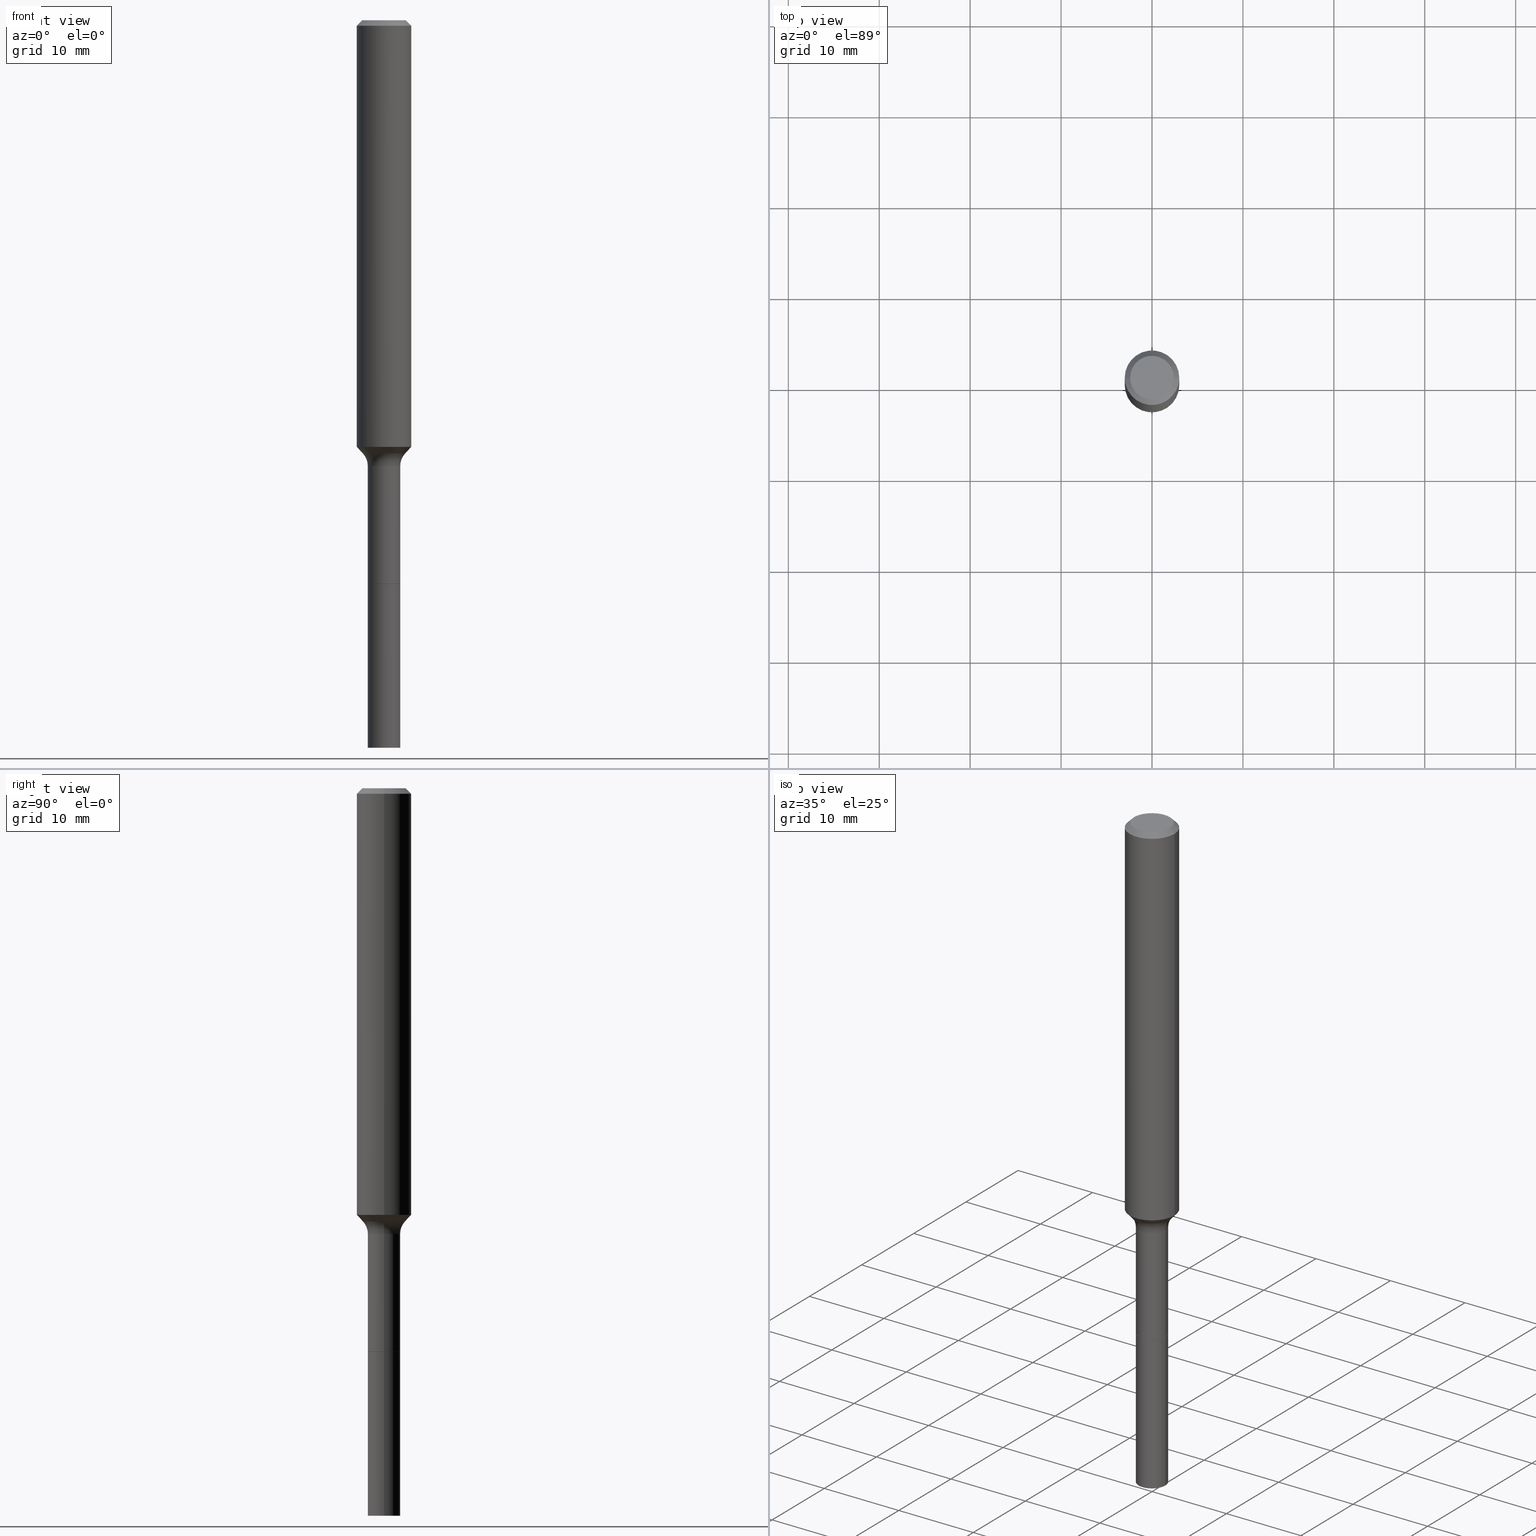
[diagram: canonical four-view strip — front | top / right | iso, engineering-drawing reading convention]
A machine part, canonical four-view strip (front | top / right | iso — engineering-drawing reading convention). The complete STEP part file that produces these views, byte-faithful:
ISO-10303-21;
HEADER;
FILE_DESCRIPTION (( 'STEP AP203' ),
    '1' );
FILE_NAME ('58869.STEP',
    '2025-04-01T15:26:04',
    ( '' ),
    ( '' ),
    'SwSTEP 2.0',
    'SolidWorks 2024',
    '' );
FILE_SCHEMA (( 'CONFIG_CONTROL_DESIGN' ));
ENDSEC;

DATA;
#1 = ORIENTED_EDGE ( 'NONE', *, *, #299, .F. ) ;
#2 = DIRECTION ( 'NONE',  ( 1.000000000000000000, -6.982962677686267499E-15, 4.875432709231658792E-29 ) ) ;
#3 = ORIENTED_EDGE ( 'NONE', *, *, #182, .F. ) ;
#4 = PRODUCT_DEFINITION ( 'UNKNOWN', '', #486, #371 ) ;
#5 = CARTESIAN_POINT ( 'NONE',  ( -0.07029999999999995974, 4.995115432393501446E-16, -3.458011368449196767E-30 ) ) ;
#6 = LENGTH_MEASURE_WITH_UNIT ( LENGTH_MEASURE( 0.02539999999999999897 ), #95 );
#7 = EDGE_CURVE ( 'NONE', #45, #402, #39, .T. ) ;
#8 = AXIS2_PLACEMENT_3D ( 'NONE', #436, #151, #211 ) ;
#9 = VECTOR ( 'NONE', #167, 39.37007874015748143 ) ;
#10 = ADVANCED_FACE ( 'NONE', ( #40 ), #481, .F. ) ;
#11 = ORIENTED_EDGE ( 'NONE', *, *, #452, .T. ) ;
#12 = DIRECTION ( 'NONE',  ( -2.438088387897960049E-29, 3.491481338843145188E-15, 1.000000000000000000 ) ) ;
#13 = CARTESIAN_POINT ( 'NONE',  ( -0.07030000000000000138, -9.259527946961124365E-15, -2.440600000000000325 ) ) ;
#14 = EDGE_CURVE ( 'NONE', #402, #45, #245, .T. ) ;
#15 = ORIENTED_EDGE ( 'NONE', *, *, #386, .F. ) ;
#16 = PLANE ( 'NONE',  #392 ) ;
#17 = ORIENTED_EDGE ( 'NONE', *, *, #55, .T. ) ;
#18 = CC_DESIGN_APPROVAL ( #196, ( #4 ) ) ;
#19 = PERSON_AND_ORGANIZATION ( #75, #469 ) ;
#20 = CIRCLE ( 'NONE', #234, 0.07030000000000000138 ) ;
#21 = CARTESIAN_POINT ( 'NONE',  ( 5.968411168375444927E-29, -8.521309355580580852E-15, -2.440600000000000325 ) ) ;
#22 = ORIENTED_EDGE ( 'NONE', *, *, #254, .F. ) ;
#23 = CYLINDRICAL_SURFACE ( 'NONE', #498, 0.07030000000000009852 ) ;
#24 = EDGE_CURVE ( 'NONE', #398, #500, #44, .T. ) ;
#25 = CIRCLE ( 'NONE', #143, 0.09179170387046625690 ) ;
#26 = EDGE_LOOP ( 'NONE', ( #221, #450 ) ) ;
#27 = AXIS2_PLACEMENT_3D ( 'NONE', #468, #108, #410 ) ;
#28 = DIRECTION ( 'NONE',  ( 1.000000000000000000, -6.982962677686266711E-15, 4.876176775795935793E-29 ) ) ;
#29 = ADVANCED_FACE ( 'NONE', ( #123 ), #288, .T. ) ;
#30 = VECTOR ( 'NONE', #389, 39.37007874015748143 ) ;
#31 = ADVANCED_FACE ( 'NONE', ( #334 ), #279, .T. ) ;
#32 = COORDINATED_UNIVERSAL_TIME_OFFSET ( 5, 0, .BEHIND. ) ;
#33 = VERTEX_POINT ( 'NONE', #236 ) ;
#34 = PRODUCT ( '58869', '58869', '', ( #454 ) ) ;
#35 = CC_DESIGN_APPROVAL ( #365, ( #486 ) ) ;
#36 = ORIENTED_EDGE ( 'NONE', *, *, #214, .T. ) ;
#37 = DIRECTION ( 'NONE',  ( -2.445468806185136597E-29, 3.491481338843145583E-15, 1.000000000000000000 ) ) ;
#38 = DATE_AND_TIME ( #287, #423 ) ;
#39 = CIRCLE ( 'NONE', #396, 0.1181000000000002187 ) ;
#40 = FACE_OUTER_BOUND ( 'NONE', #286, .T. ) ;
#41 = ORIENTED_EDGE ( 'NONE', *, *, #299, .T. ) ;
#42 = ORIENTED_EDGE ( 'NONE', *, *, #102, .T. ) ;
#43 = AXIS2_PLACEMENT_3D ( 'NONE', #124, #325, #407 ) ;
#44 = LINE ( 'NONE', #248, #9 ) ;
#45 = VERTEX_POINT ( 'NONE', #390 ) ;
#46 = CARTESIAN_POINT ( 'NONE',  ( 0.1181000000000001077, -8.246878922347488542E-16, 5.758764772215005345E-30 ) ) ;
#47 = ADVANCED_BREP_SHAPE_REPRESENTATION ( '58869', ( #303, #479, #173 ), #379 ) ;
#48 = PRODUCT_DEFINITION_SHAPE ( 'NONE', 'NONE',  #4 ) ;
#49 = EDGE_CURVE ( 'NONE', #500, #444, #404, .T. ) ;
#50 = DIRECTION ( 'NONE',  ( -1.000000000000000000, 6.982962677686266711E-15, 0.000000000000000000 ) ) ;
#51 = DIRECTION ( 'NONE',  ( 0.6819983600625029174, -2.208861293262521557E-15, 0.7313537016191662410 ) ) ;
#52 = CIRCLE ( 'NONE', #275, 0.06980000000000000093 ) ;
#53 = VERTEX_POINT ( 'NONE', #13 ) ;
#54 = LINE ( 'NONE', #217, #329 ) ;
#55 = EDGE_CURVE ( 'NONE', #444, #361, #175, .T. ) ;
#56 = DIRECTION ( 'NONE',  ( -2.445468806185136597E-29, 3.491481338843145583E-15, 1.000000000000000000 ) ) ;
#57 = ORIENTED_EDGE ( 'NONE', *, *, #24, .F. ) ;
#58 = DIRECTION ( 'NONE',  ( 1.000000000000000000, -6.982962677686279332E-15, 0.000000000000000000 ) ) ;
#59 = DIRECTION ( 'NONE',  ( -2.445468806185136597E-29, 3.491481338843145583E-15, 1.000000000000000000 ) ) ;
#60 = ORIENTED_EDGE ( 'NONE', *, *, #330, .F. ) ;
#61 = VERTEX_POINT ( 'NONE', #405 ) ;
#62 = ORIENTED_EDGE ( 'NONE', *, *, #336, .T. ) ;
#63 = AXIS2_PLACEMENT_3D ( 'NONE', #265, #430, #147 ) ;
#64 = APPLICATION_CONTEXT ( 'configuration controlled 3d designs of mechanical parts and assemblies' ) ;
#65 = CC_DESIGN_DATE_AND_TIME_ASSIGNMENT ( #149, #159, ( #121 ) ) ;
#66 = FACE_OUTER_BOUND ( 'NONE', #80, .T. ) ;
#67 = DIRECTION ( 'NONE',  ( 1.000000000000000000, -6.982962677686270655E-15, 0.000000000000000000 ) ) ;
#68 = APPLICATION_PROTOCOL_DEFINITION ( 'international standard', 'config_control_design', 1994, #64 ) ;
#69 = EDGE_CURVE ( 'NONE', #361, #247, #158, .T. ) ;
#70 = DIRECTION ( 'NONE',  ( -2.445468806185136597E-29, 3.491481338843145583E-15, 1.000000000000000000 ) ) ;
#71 = CARTESIAN_POINT ( 'NONE',  ( 0.07030000000000000138, -9.012211631821926589E-15, -2.440600000000000325 ) ) ;
#72 = PRODUCT_RELATED_PRODUCT_CATEGORY ( 'detail', '', ( #34 ) ) ;
#73 = EDGE_LOOP ( 'NONE', ( #215, #425, #338, #439 ) ) ;
#74 = AXIS2_PLACEMENT_3D ( 'NONE', #157, #169, #333 ) ;
#75 = PERSON ( 'UNSPECIFIED', 'UNSPECIFIED', 'UNSPECIFIED', ('UNSPECIFIED'), ('UNSPECIFIED'), ('UNSPECIFIED') ) ;
#76 = DIRECTION ( 'NONE',  ( 2.438088387897960049E-29, -3.491481338843145188E-15, -1.000000000000000000 ) ) ;
#77 = DIRECTION ( 'NONE',  ( 2.445468806185136597E-29, -3.491481338843145583E-15, -1.000000000000000000 ) ) ;
#78 = PERSON_AND_ORGANIZATION ( #75, #469 ) ;
#79 = FACE_OUTER_BOUND ( 'NONE', #103, .T. ) ;
#80 = EDGE_LOOP ( 'NONE', ( #142, #413, #497, #510 ) ) ;
#81 = CARTESIAN_POINT ( 'NONE',  ( -0.1180999999999999966, -2.426166063791637910E-15, -0.02362000000000014435 ) ) ;
#82 = AXIS2_PLACEMENT_3D ( 'NONE', #502, #315, #98 ) ;
#83 = COORDINATED_UNIVERSAL_TIME_OFFSET ( 5, 0, .BEHIND. ) ;
#84 = CYLINDRICAL_SURFACE ( 'NONE', #462, 0.1181000000000001077 ) ;
#85 = ORIENTED_EDGE ( 'NONE', *, *, #163, .F. ) ;
#86 = EDGE_CURVE ( 'NONE', #500, #247, #130, .T. ) ;
#87 = DIRECTION ( 'NONE',  ( -2.445468806185136597E-29, 3.491481338843145583E-15, 1.000000000000000000 ) ) ;
#88 = ORIENTED_EDGE ( 'NONE', *, *, #7, .T. ) ;
#89 = SHAPE_DEFINITION_REPRESENTATION ( #48, #47 ) ;
#90 = CARTESIAN_POINT ( 'NONE',  ( 4.516360111820457687E-29, -6.448165280225159912E-15, -1.846827937611624559 ) ) ;
#91 = EDGE_LOOP ( 'NONE', ( #201, #88, #252, #487 ) ) ;
#92 = CARTESIAN_POINT ( 'NONE',  ( 5.968411168375444927E-29, -8.521309355580580852E-15, -2.440600000000000325 ) ) ;
#93 = AXIS2_PLACEMENT_3D ( 'NONE', #380, #184, #387 ) ;
#94 = ADVANCED_FACE ( 'NONE', ( #411 ), #352, .T. ) ;
#95 =( LENGTH_UNIT ( ) NAMED_UNIT ( * ) SI_UNIT ( $, .METRE. ) );
#96 = CIRCLE ( 'NONE', #93, 0.07029999999999993199 ) ;
#97 = DIRECTION ( 'NONE',  ( 0.7071067811865460184, -7.319954787623251312E-15, -0.7071067811865490160 ) ) ;
#98 = DIRECTION ( 'NONE',  ( 1.000000000000000000, -6.982962677686279332E-15, 0.000000000000000000 ) ) ;
#99 = ORIENTED_EDGE ( 'NONE', *, *, #409, .T. ) ;
#100 = CARTESIAN_POINT ( 'NONE',  ( 0.1180999999999999966, -8.926936027602933910E-16, -0.02362000000000014435 ) ) ;
#101 = AXIS2_PLACEMENT_3D ( 'NONE', #482, #171, #116 ) ;
#102 = EDGE_CURVE ( 'NONE', #302, #477, #412, .T. ) ;
#103 = EDGE_LOOP ( 'NONE', ( #244, #513, #476, #1 ) ) ;
#104 = DIRECTION ( 'NONE',  ( -2.445468806185136597E-29, 3.491481338843145583E-15, 1.000000000000000000 ) ) ;
#105 = CARTESIAN_POINT ( 'NONE',  ( -0.09179170387046634016, -5.894448343767324042E-15, -1.875040131195000015 ) ) ;
#106 = CLOSED_SHELL ( 'NONE', ( #119, #238, #140, #190, #320, #29, #491, #360, #94, #293, #420, #437, #229, #473 ) ) ;
#107 = ORIENTED_EDGE ( 'NONE', *, *, #220, .T. ) ;
#108 = DIRECTION ( 'NONE',  ( -2.445468806185136597E-29, 3.491481338843145583E-15, 1.000000000000000000 ) ) ;
#109 = CARTESIAN_POINT ( 'NONE',  ( 0.07029999999999993199, -7.228064667673078944E-15, -1.929599999999999982 ) ) ;
#110 = VECTOR ( 'NONE', #471, 39.37007874015748143 ) ;
#111 = COORDINATED_UNIVERSAL_TIME_OFFSET ( 5, 0, .BEHIND. ) ;
#112 = CARTESIAN_POINT ( 'NONE',  ( 5.968411168375444927E-29, -8.521309355580580852E-15, -2.440600000000000325 ) ) ;
#113 = FACE_OUTER_BOUND ( 'NONE', #179, .T. ) ;
#114 = CARTESIAN_POINT ( 'NONE',  ( -0.1181000000000001077, 8.391509709326790846E-16, -5.809262341591049389E-30 ) ) ;
#115 = CALENDAR_DATE ( 2025, 1, 4 ) ;
#116 = DIRECTION ( 'NONE',  ( 1.000000000000000000, -6.982962677686265922E-15, 4.883557194083112901E-29 ) ) ;
#117 = DIRECTION ( 'NONE',  ( -2.445468806185136597E-29, 3.491481338843145583E-15, 1.000000000000000000 ) ) ;
#118 = CARTESIAN_POINT ( 'NONE',  ( 5.968411168375444927E-29, -8.521309355580580852E-15, -2.440600000000000325 ) ) ;
#119 = ADVANCED_FACE ( 'NONE', ( #79 ), #458, .T. ) ;
#120 = DATE_AND_TIME ( #362, #518 ) ;
#121 = SECURITY_CLASSIFICATION ( '', '', #331 ) ;
#122 = AXIS2_PLACEMENT_3D ( 'NONE', #375, #56, #281 ) ;
#123 = FACE_OUTER_BOUND ( 'NONE', #332, .T. ) ;
#124 = CARTESIAN_POINT ( 'NONE',  ( 0.000000000000000000, 0.000000000000000000, 0.000000000000000000 ) ) ;
#125 = EDGE_CURVE ( 'NONE', #477, #297, #319, .T. ) ;
#126 = EDGE_LOOP ( 'NONE', ( #3, #42, #177, #22 ) ) ;
#127 = CYLINDRICAL_SURFACE ( 'NONE', #43, 0.07029999999999995974 ) ;
#128 = AXIS2_PLACEMENT_3D ( 'NONE', #253, #250, #451 ) ;
#129 = DIRECTION ( 'NONE',  ( -1.000000000000000000, 6.982962677686265922E-15, -4.876176775795935793E-29 ) ) ;
#130 = LINE ( 'NONE', #5, #304 ) ;
#131 = EDGE_LOOP ( 'NONE', ( #495, #156, #17, #60 ) ) ;
#132 = DIRECTION ( 'NONE',  ( 0.000000000000000000, 0.000000000000000000, 1.000000000000000000 ) ) ;
#133 = CARTESIAN_POINT ( 'NONE',  ( 5.776197320209328408E-31, -8.246878922347560526E-17, -0.02362000000000014435 ) ) ;
#134 = CIRCLE ( 'NONE', #464, 0.08000000000000007105 ) ;
#135 = APPROVAL ( #326, 'UNSPECIFIED' ) ;
#136 = DIRECTION ( 'NONE',  ( 1.000000000000000000, -6.982962677686266711E-15, 4.876176775795935793E-29 ) ) ;
#137 = DIRECTION ( 'NONE',  ( 1.000000000000000000, -6.982962677686265922E-15, 4.883557194083112901E-29 ) ) ;
#138 = ORIENTED_EDGE ( 'NONE', *, *, #176, .F. ) ;
#139 = DIRECTION ( 'NONE',  ( -2.445468806185136597E-29, 3.491481338843145583E-15, 1.000000000000000000 ) ) ;
#140 = ADVANCED_FACE ( 'NONE', ( #283 ), #84, .T. ) ;
#141 = APPLICATION_CONTEXT ( 'configuration controlled 3d designs of mechanical parts and assemblies' ) ;
#142 = ORIENTED_EDGE ( 'NONE', *, *, #443, .F. ) ;
#143 = AXIS2_PLACEMENT_3D ( 'NONE', #496, #139, #67 ) ;
#144 = CARTESIAN_POINT ( 'NONE',  ( -0.1502999999999999337, -5.669216659584303494E-15, -1.929599999999999982 ) ) ;
#145 = CIRCLE ( 'NONE', #27, 0.1180999999999999966 ) ;
#146 = DIRECTION ( 'NONE',  ( 1.000000000000000000, -6.982962677686266711E-15, 0.000000000000000000 ) ) ;
#147 = DIRECTION ( 'NONE',  ( -1.000000000000000000, 6.982962677686265922E-15, -4.876176775795935793E-29 ) ) ;
#148 = EDGE_CURVE ( 'NONE', #418, #463, #172, .T. ) ;
#149 = DATE_AND_TIME ( #433, #408 ) ;
#150 = DIRECTION ( 'NONE',  ( 1.000000000000000000, -6.982962677686257244E-15, 0.000000000000000000 ) ) ;
#151 = DIRECTION ( 'NONE',  ( -2.445468806185136597E-29, 3.491481338843145583E-15, 1.000000000000000000 ) ) ;
#152 = AXIS2_PLACEMENT_3D ( 'NONE', #341, #227, #305 ) ;
#153 = DATE_AND_TIME ( #422, #351 ) ;
#154 = AXIS2_PLACEMENT_3D ( 'NONE', #344, #186, #183 ) ;
#155 = CC_DESIGN_DATE_AND_TIME_ASSIGNMENT ( #38, #388, ( #4 ) ) ;
#156 = ORIENTED_EDGE ( 'NONE', *, *, #49, .T. ) ;
#157 = CARTESIAN_POINT ( 'NONE',  ( 7.702248551960706711E-29, -1.099676962482037231E-14, -3.149600000000000399 ) ) ;
#158 = CIRCLE ( 'NONE', #294, 0.07029999999999993199 ) ;
#159 = DATE_TIME_ROLE ( 'classification_date' ) ;
#160 = EDGE_CURVE ( 'NONE', #328, #247, #240, .T. ) ;
#161 = ORIENTED_EDGE ( 'NONE', *, *, #508, .T. ) ;
#162 = EDGE_LOOP ( 'NONE', ( #268, #395, #467, #15 ) ) ;
#163 = EDGE_CURVE ( 'NONE', #421, #463, #459, .T. ) ;
#164 = PERSON_AND_ORGANIZATION_ROLE ( 'creator' ) ;
#165 = ORIENTED_EDGE ( 'NONE', *, *, #125, .F. ) ;
#166 = CIRCLE ( 'NONE', #453, 0.09447999999999998066 ) ;
#167 = DIRECTION ( 'NONE',  ( -0.7071067811866199593, 7.493145998870616062E-15, 0.7071067811864750752 ) ) ;
#168 = ORIENTED_EDGE ( 'NONE', *, *, #416, .T. ) ;
#169 = DIRECTION ( 'NONE',  ( -2.445468806185136597E-29, 3.491481338843145583E-15, 1.000000000000000000 ) ) ;
#170 = DIRECTION ( 'NONE',  ( 1.000000000000000000, -6.982962677686268288E-15, 4.876176775795935793E-29 ) ) ;
#171 = DIRECTION ( 'NONE',  ( -2.445468806185136597E-29, 3.491481338843145583E-15, 1.000000000000000000 ) ) ;
#172 = CIRCLE ( 'NONE', #213, 0.1180999999999999966 ) ;
#173 = AXIS2_PLACEMENT_3D ( 'NONE', #340, #132, #298 ) ;
#174 = AXIS2_PLACEMENT_3D ( 'NONE', #118, #76, #284 ) ;
#175 = LINE ( 'NONE', #368, #406 ) ;
#176 = EDGE_CURVE ( 'NONE', #358, #328, #25, .T. ) ;
#177 = ORIENTED_EDGE ( 'NONE', *, *, #125, .T. ) ;
#178 = CARTESIAN_POINT ( 'NONE',  ( 0.000000000000000000, 0.000000000000000000, 0.000000000000000000 ) ) ;
#179 = EDGE_LOOP ( 'NONE', ( #85, #447, #36, #223 ) ) ;
#180 = CARTESIAN_POINT ( 'NONE',  ( 7.702248551960706711E-29, -1.099676962482037231E-14, -3.149600000000000399 ) ) ;
#181 = EDGE_LOOP ( 'NONE', ( #295, #461 ) ) ;
#182 = EDGE_CURVE ( 'NONE', #302, #53, #381, .T. ) ;
#183 = DIRECTION ( 'NONE',  ( 1.000000000000000000, -6.982962677686270655E-15, 0.000000000000000000 ) ) ;
#184 = DIRECTION ( 'NONE',  ( -2.445468806185136597E-29, 3.491481338843145583E-15, 1.000000000000000000 ) ) ;
#185 = EDGE_LOOP ( 'NONE', ( #57, #99, #41, #291 ) ) ;
#186 = DIRECTION ( 'NONE',  ( -2.445468806185136597E-29, 3.491481338843145583E-15, 1.000000000000000000 ) ) ;
#187 = CARTESIAN_POINT ( 'NONE',  ( 4.718776608414840041E-29, -6.737162391431733996E-15, -1.929599999999999982 ) ) ;
#188 = ORIENTED_EDGE ( 'NONE', *, *, #182, .T. ) ;
#189 = FACE_OUTER_BOUND ( 'NONE', #266, .T. ) ;
#190 = ADVANCED_FACE ( 'NONE', ( #189 ), #428, .T. ) ;
#191 = CIRCLE ( 'NONE', #8, 0.06980000000000000093 ) ;
#192 = ORIENTED_EDGE ( 'NONE', *, *, #508, .F. ) ;
#193 = AXIS2_PLACEMENT_3D ( 'NONE', #180, #87, #434 ) ;
#194 = CARTESIAN_POINT ( 'NONE',  ( 5.968411168375444927E-29, -8.521309355580580852E-15, -2.440600000000000325 ) ) ;
#195 = APPROVAL_DATE_TIME ( #153, #196 ) ;
#196 = APPROVAL ( #327, 'UNSPECIFIED' ) ;
#197 = CARTESIAN_POINT ( 'NONE',  ( 5.967188433972353247E-29, -8.519563614911160138E-15, -2.440100000000000158 ) ) ;
#198 = AXIS2_PLACEMENT_3D ( 'NONE', #187, #348, #137 ) ;
#199 = TOROIDAL_SURFACE ( 'NONE', #198, 0.1502999999999999337, 0.08000000000000007105 ) ;
#200 = APPROVAL_STATUS ( 'not_yet_approved' ) ;
#201 = ORIENTED_EDGE ( 'NONE', *, *, #313, .F. ) ;
#202 = DIRECTION ( 'NONE',  ( 1.000000000000000000, -6.982962677686265922E-15, 0.000000000000000000 ) ) ;
#203 = APPROVAL_ROLE ( '' ) ;
#204 = ORIENTED_EDGE ( 'NONE', *, *, #69, .F. ) ;
#205 = CC_DESIGN_PERSON_AND_ORGANIZATION_ASSIGNMENT ( #19, #345, ( #34 ) ) ;
#206 = ORIENTED_EDGE ( 'NONE', *, *, #218, .T. ) ;
#207 = DIRECTION ( 'NONE',  ( 1.000000000000000000, -6.982962677686267499E-15, 0.000000000000000000 ) ) ;
#208 = ADVANCED_FACE ( 'NONE', ( #263 ), #23, .T. ) ;
#209 = CONICAL_SURFACE ( 'NONE', #152, 0.1180999999999999966, 0.7853981633974461696 ) ;
#210 = ORIENTED_EDGE ( 'NONE', *, *, #290, .T. ) ;
#211 = DIRECTION ( 'NONE',  ( 1.000000000000000000, -6.982962677686257244E-15, 0.000000000000000000 ) ) ;
#212 = FACE_OUTER_BOUND ( 'NONE', #185, .T. ) ;
#213 = AXIS2_PLACEMENT_3D ( 'NONE', #133, #301, #146 ) ;
#214 = EDGE_CURVE ( 'NONE', #33, #418, #346, .T. ) ;
#215 = ORIENTED_EDGE ( 'NONE', *, *, #220, .F. ) ;
#216 = APPLICATION_PROTOCOL_DEFINITION ( 'international standard', 'config_control_design', 1994, #141 ) ;
#217 = CARTESIAN_POINT ( 'NONE',  ( -0.09179170387046625690, -5.894448343767325620E-15, -1.875040131195000015 ) ) ;
#218 = EDGE_CURVE ( 'NONE', #297, #53, #20, .T. ) ;
#219 = DIRECTION ( 'NONE',  ( -0.7071067811865460184, 2.468850131082241283E-15, -0.7071067811865490160 ) ) ;
#220 = EDGE_CURVE ( 'NONE', #421, #33, #342, .T. ) ;
#221 = ORIENTED_EDGE ( 'NONE', *, *, #504, .F. ) ;
#222 = FACE_OUTER_BOUND ( 'NONE', #91, .T. ) ;
#223 = ORIENTED_EDGE ( 'NONE', *, *, #148, .T. ) ;
#224 = DIRECTION ( 'NONE',  ( -1.000000000000000000, 7.105427357601005014E-15, 0.000000000000000000 ) ) ;
#225 = CLOSED_SHELL ( 'NONE', ( #208, #347, #31, #10 ) ) ;
#226 = ORIENTED_EDGE ( 'NONE', *, *, #443, .T. ) ;
#227 = DIRECTION ( 'NONE',  ( 2.445468806185136597E-29, -3.491481338843145583E-15, -1.000000000000000000 ) ) ;
#228 = DIRECTION ( 'NONE',  ( -2.445468806185136597E-29, 3.491481338843145583E-15, 1.000000000000000000 ) ) ;
#229 = ADVANCED_FACE ( 'NONE', ( #350 ), #16, .F. ) ;
#230 = FACE_OUTER_BOUND ( 'NONE', #349, .T. ) ;
#231 =( NAMED_UNIT ( * ) PLANE_ANGLE_UNIT ( ) SI_UNIT ( $, .RADIAN. ) );
#232 = AXIS2_PLACEMENT_3D ( 'NONE', #194, #117, #150 ) ;
#233 = LINE ( 'NONE', #114, #110 ) ;
#234 = AXIS2_PLACEMENT_3D ( 'NONE', #414, #104, #58 ) ;
#235 = CARTESIAN_POINT ( 'NONE',  ( 0.07030000000000009852, -9.012211631821926589E-15, -2.440600000000000325 ) ) ;
#236 = CARTESIAN_POINT ( 'NONE',  ( -0.09447999999999998066, 7.009847083995354710E-16, -3.085620075132147757E-17 ) ) ;
#237 = CARTESIAN_POINT ( 'NONE',  ( 5.968411168375444927E-29, -8.521309355580580852E-15, -2.440600000000000325 ) ) ;
#238 = ADVANCED_FACE ( 'NONE', ( #465 ), #209, .T. ) ;
#239 = APPROVAL_ROLE ( '' ) ;
#240 = CIRCLE ( 'NONE', #309, 0.08000000000000007105 ) ;
#241 = DIRECTION ( 'NONE',  ( 1.000000000000000000, -6.982962677686267499E-15, 0.000000000000000000 ) ) ;
#242 = FACE_OUTER_BOUND ( 'NONE', #376, .T. ) ;
#243 = CARTESIAN_POINT ( 'NONE',  ( 0.000000000000000000, 0.000000000000000000, 0.000000000000000000 ) ) ;
#244 = ORIENTED_EDGE ( 'NONE', *, *, #504, .T. ) ;
#245 = CIRCLE ( 'NONE', #316, 0.1181000000000002187 ) ;
#246 = PERSON_AND_ORGANIZATION ( #75, #469 ) ;
#247 = VERTEX_POINT ( 'NONE', #383 ) ;
#248 = CARTESIAN_POINT ( 'NONE',  ( -0.06980000000000000093, -8.025350526020031902E-15, -2.440600000000000325 ) ) ;
#249 = CONICAL_SURFACE ( 'NONE', #322, 0.06980000000000000093, 0.7853981633975507526 ) ;
#250 = DIRECTION ( 'NONE',  ( -2.445468806185136597E-29, 3.491481338843145583E-15, 1.000000000000000000 ) ) ;
#251 = CC_DESIGN_PERSON_AND_ORGANIZATION_ASSIGNMENT ( #246, #164, ( #4 ) ) ;
#252 = ORIENTED_EDGE ( 'NONE', *, *, #386, .T. ) ;
#253 = CARTESIAN_POINT ( 'NONE',  ( 4.585352151182658588E-29, -6.546667627649345936E-15, -1.875040131195000015 ) ) ;
#254 = EDGE_CURVE ( 'NONE', #53, #297, #312, .T. ) ;
#255 = ORIENTED_EDGE ( 'NONE', *, *, #69, .T. ) ;
#256 = FACE_OUTER_BOUND ( 'NONE', #131, .T. ) ;
#257 = DIMENSIONAL_EXPONENTS ( 1.000000000000000000, 0.000000000000000000, 0.000000000000000000, 0.000000000000000000, 0.000000000000000000, 0.000000000000000000, 0.000000000000000000 ) ;
#258 =( NAMED_UNIT ( * ) SI_UNIT ( $, .STERADIAN. ) SOLID_ANGLE_UNIT ( ) );
#259 = CC_DESIGN_SECURITY_CLASSIFICATION ( #121, ( #486 ) ) ;
#260 = DIRECTION ( 'NONE',  ( -2.445468806185136877E-29, 3.491481338843145188E-15, 1.000000000000000000 ) ) ;
#261 = CARTESIAN_POINT ( 'NONE',  ( -0.07030000000000009852, -8.021797812341230215E-15, -2.440600000000000325 ) ) ;
#262 = ORIENTED_EDGE ( 'NONE', *, *, #14, .F. ) ;
#263 = FACE_OUTER_BOUND ( 'NONE', #441, .T. ) ;
#264 = ORIENTED_EDGE ( 'NONE', *, *, #254, .T. ) ;
#265 = CARTESIAN_POINT ( 'NONE',  ( 7.702248551960706711E-29, -1.099676962482037231E-14, -3.149600000000000399 ) ) ;
#266 = EDGE_LOOP ( 'NONE', ( #373, #210, #262, #192 ) ) ;
#267 = APPROVAL_PERSON_ORGANIZATION ( #78, #365, #203 ) ;
#268 = ORIENTED_EDGE ( 'NONE', *, *, #14, .T. ) ;
#269 = CC_DESIGN_PERSON_AND_ORGANIZATION_ASSIGNMENT ( #323, #442, ( #121 ) ) ;
#270 = CARTESIAN_POINT ( 'NONE',  ( 7.545787641473140628E-46, -1.077338491108201769E-31, -3.085620075131671975E-17 ) ) ;
#271 = CARTESIAN_POINT ( 'NONE',  ( 5.967188433972353247E-29, -8.519563614911160138E-15, -2.440100000000000158 ) ) ;
#272 = ORIENTED_EDGE ( 'NONE', *, *, #290, .F. ) ;
#273 = EDGE_CURVE ( 'NONE', #463, #418, #145, .T. ) ;
#274 = DIRECTION ( 'NONE',  ( 0.7071067811866199593, -2.468850131083015945E-15, 0.7071067811864750752 ) ) ;
#275 = AXIS2_PLACEMENT_3D ( 'NONE', #237, #289, #445 ) ;
#276 = PERSON_AND_ORGANIZATION_ROLE ( 'design_supplier' ) ;
#277 = DIRECTION ( 'NONE',  ( -2.445468806185136597E-29, 3.491481338843145583E-15, 1.000000000000000000 ) ) ;
#278 = CARTESIAN_POINT ( 'NONE',  ( 5.776197320209328408E-31, -8.246878922347560526E-17, -0.02362000000000014435 ) ) ;
#279 = CYLINDRICAL_SURFACE ( 'NONE', #466, 0.07030000000000009852 ) ;
#280 = DIRECTION ( 'NONE',  ( 1.000000000000000000, -6.982962677686257244E-15, 0.000000000000000000 ) ) ;
#281 = DIRECTION ( 'NONE',  ( 1.000000000000000000, -6.982962677686270655E-15, 0.000000000000000000 ) ) ;
#282 = APPROVAL_ROLE ( '' ) ;
#283 = FACE_OUTER_BOUND ( 'NONE', #162, .T. ) ;
#284 = DIRECTION ( 'NONE',  ( -1.000000000000000000, 6.982962677686265922E-15, -4.876176775795935793E-29 ) ) ;
#285 = CIRCLE ( 'NONE', #128, 0.09179170387046625690 ) ;
#286 = EDGE_LOOP ( 'NONE', ( #206, #264 ) ) ;
#287 = CALENDAR_DATE ( 2025, 1, 4 ) ;
#288 = CYLINDRICAL_SURFACE ( 'NONE', #472, 0.07029999999999995974 ) ;
#289 = DIRECTION ( 'NONE',  ( -2.445468806185136597E-29, 3.491481338843145583E-15, 1.000000000000000000 ) ) ;
#290 = EDGE_CURVE ( 'NONE', #328, #45, #54, .T. ) ;
#291 = ORIENTED_EDGE ( 'NONE', *, *, #49, .F. ) ;
#292 = VECTOR ( 'NONE', #339, 39.37007874015748143 ) ;
#293 = ADVANCED_FACE ( 'NONE', ( #222 ), #374, .T. ) ;
#294 = AXIS2_PLACEMENT_3D ( 'NONE', #415, #59, #483 ) ;
#295 = ORIENTED_EDGE ( 'NONE', *, *, #480, .F. ) ;
#296 =( CONVERSION_BASED_UNIT ( 'INCH', #6 ) LENGTH_UNIT ( ) NAMED_UNIT ( #257 ) );
#297 = VERTEX_POINT ( 'NONE', #71 ) ;
#298 = DIRECTION ( 'NONE',  ( 1.000000000000000000, 0.000000000000000000, 0.000000000000000000 ) ) ;
#299 = EDGE_CURVE ( 'NONE', #61, #444, #429, .T. ) ;
#300 = VECTOR ( 'NONE', #274, 39.37007874015748143 ) ;
#301 = DIRECTION ( 'NONE',  ( -2.445468806185136597E-29, 3.491481338843145583E-15, 1.000000000000000000 ) ) ;
#302 = VERTEX_POINT ( 'NONE', #505 ) ;
#303 = MANIFOLD_SOLID_BREP ( 'Body-Move/Copy2[1]', #225 ) ;
#304 = VECTOR ( 'NONE', #260, 39.37007874015748143 ) ;
#305 = DIRECTION ( 'NONE',  ( -1.000000000000000000, 6.982962677686266711E-15, 0.000000000000000000 ) ) ;
#306 = DIRECTION ( 'NONE',  ( -2.445468806185136877E-29, 3.491481338843145188E-15, 1.000000000000000000 ) ) ;
#307 = CC_DESIGN_PERSON_AND_ORGANIZATION_ASSIGNMENT ( #357, #512, ( #486 ) ) ;
#308 = DIRECTION ( 'NONE',  ( -2.445468806185136597E-29, 3.491481338843145583E-15, 1.000000000000000000 ) ) ;
#309 = AXIS2_PLACEMENT_3D ( 'NONE', #144, #456, #224 ) ;
#310 = ORIENTED_EDGE ( 'NONE', *, *, #160, .F. ) ;
#311 = DIRECTION ( 'NONE',  ( 1.000000000000000000, -6.982962677686269866E-15, 0.000000000000000000 ) ) ;
#312 = CIRCLE ( 'NONE', #82, 0.07030000000000000138 ) ;
#313 = EDGE_CURVE ( 'NONE', #45, #418, #233, .T. ) ;
#314 = EDGE_LOOP ( 'NONE', ( #272, #226, #161, #324 ) ) ;
#315 = DIRECTION ( 'NONE',  ( -2.445468806185136597E-29, 3.491481338843145583E-15, 1.000000000000000000 ) ) ;
#316 = AXIS2_PLACEMENT_3D ( 'NONE', #363, #517, #241 ) ;
#317 = CARTESIAN_POINT ( 'NONE',  ( 0.09179170387046634016, -7.187645669898042829E-15, -1.875040131195000015 ) ) ;
#318 = CC_DESIGN_PERSON_AND_ORGANIZATION_ASSIGNMENT ( #397, #276, ( #486 ) ) ;
#319 = LINE ( 'NONE', #235, #30 ) ;
#320 = ADVANCED_FACE ( 'NONE', ( #66 ), #199, .F. ) ;
#321 = DIRECTION ( 'NONE',  ( -6.982962677686266711E-15, -1.000000000000000000, 3.491481338843145583E-15 ) ) ;
#322 = AXIS2_PLACEMENT_3D ( 'NONE', #92, #511, #280 ) ;
#323 = PERSON_AND_ORGANIZATION ( #75, #469 ) ;
#324 = ORIENTED_EDGE ( 'NONE', *, *, #7, .F. ) ;
#325 = DIRECTION ( 'NONE',  ( -2.445468806185136597E-29, 3.491481338843145583E-15, 1.000000000000000000 ) ) ;
#326 = APPROVAL_STATUS ( 'not_yet_approved' ) ;
#327 = APPROVAL_STATUS ( 'not_yet_approved' ) ;
#328 = VERTEX_POINT ( 'NONE', #105 ) ;
#329 = VECTOR ( 'NONE', #419, 39.37007874015748854 ) ;
#330 = EDGE_CURVE ( 'NONE', #247, #361, #96, .T. ) ;
#331 = SECURITY_CLASSIFICATION_LEVEL ( 'unclassified' ) ;
#332 = EDGE_LOOP ( 'NONE', ( #62, #484, #204, #393 ) ) ;
#333 = DIRECTION ( 'NONE',  ( 1.000000000000000000, -6.982962677686259611E-15, 0.000000000000000000 ) ) ;
#334 = FACE_OUTER_BOUND ( 'NONE', #126, .T. ) ;
#335 = CARTESIAN_POINT ( 'NONE',  ( 3.772893820736570314E-46, -5.386692455541008845E-32, -1.542810037565835988E-17 ) ) ;
#336 = EDGE_CURVE ( 'NONE', #444, #500, #372, .T. ) ;
#337 = AXIS2_PLACEMENT_3D ( 'NONE', #178, #228, #28 ) ;
#338 = ORIENTED_EDGE ( 'NONE', *, *, #273, .T. ) ;
#339 = DIRECTION ( 'NONE',  ( -2.445468806185136877E-29, 3.491481338843145188E-15, 1.000000000000000000 ) ) ;
#340 = CARTESIAN_POINT ( 'NONE',  ( 0.000000000000000000, 0.000000000000000000, 0.000000000000000000 ) ) ;
#341 = CARTESIAN_POINT ( 'NONE',  ( 5.776197320209328408E-31, -8.246878922347560526E-17, -0.02362000000000014435 ) ) ;
#342 = CIRCLE ( 'NONE', #364, 0.09447999999999998066 ) ;
#343 = DIRECTION ( 'NONE',  ( 1.000000000000000000, -6.982962677686265922E-15, 4.876176775795935793E-29 ) ) ;
#344 = CARTESIAN_POINT ( 'NONE',  ( 4.585352151182658588E-29, -6.546667627649345936E-15, -1.875040131195000015 ) ) ;
#345 = PERSON_AND_ORGANIZATION_ROLE ( 'design_owner' ) ;
#346 = LINE ( 'NONE', #377, #448 ) ;
#347 = ADVANCED_FACE ( 'NONE', ( #460 ), #503, .T. ) ;
#348 = DIRECTION ( 'NONE',  ( -2.445468806185136597E-29, 3.491481338843145583E-15, 1.000000000000000000 ) ) ;
#349 = EDGE_LOOP ( 'NONE', ( #310, #138, #168, #255 ) ) ;
#350 = FACE_OUTER_BOUND ( 'NONE', #26, .T. ) ;
#351 = LOCAL_TIME ( 11, 26, 4.000000000000000000, #83 ) ;
#352 = CONICAL_SURFACE ( 'NONE', #122, 0.09179170387046625690, 0.7504915783575678567 ) ;
#353 = APPROVAL_DATE_TIME ( #120, #135 ) ;
#354 = DIRECTION ( 'NONE',  ( -2.445468806185136597E-29, 3.491481338843145583E-15, 1.000000000000000000 ) ) ;
#355 = CARTESIAN_POINT ( 'NONE',  ( 7.545787641473140628E-46, -1.077338491108201769E-31, -3.085620075131671975E-17 ) ) ;
#356 = TOROIDAL_SURFACE ( 'NONE', #101, 0.1502999999999999337, 0.08000000000000007105 ) ;
#357 = PERSON_AND_ORGANIZATION ( #75, #469 ) ;
#358 = VERTEX_POINT ( 'NONE', #317 ) ;
#359 = CARTESIAN_POINT ( 'NONE',  ( 0.1180999999999999966, -9.071566814582237199E-16, -0.02362000000000014435 ) ) ;
#360 = ADVANCED_FACE ( 'NONE', ( #230 ), #356, .F. ) ;
#361 = VERTEX_POINT ( 'NONE', #109 ) ;
#362 = CALENDAR_DATE ( 2025, 1, 4 ) ;
#363 = CARTESIAN_POINT ( 'NONE',  ( 4.516360111820457687E-29, -6.448165280225159912E-15, -1.846827937611624559 ) ) ;
#364 = AXIS2_PLACEMENT_3D ( 'NONE', #270, #70, #499 ) ;
#365 = APPROVAL ( #200, 'UNSPECIFIED' ) ;
#366 = DIRECTION ( 'NONE',  ( -2.445468806185136597E-29, 3.491481338843145583E-15, 1.000000000000000000 ) ) ;
#367 = CARTESIAN_POINT ( 'NONE',  ( -0.07030000000000000138, -7.128851459932096824E-15, -2.440100000000000158 ) ) ;
#368 = CARTESIAN_POINT ( 'NONE',  ( 0.07029999999999995974, -4.909022762413443557E-16, 3.427952273384541035E-30 ) ) ;
#369 = PLANE ( 'NONE',  #493 ) ;
#370 = VECTOR ( 'NONE', #97, 39.37007874015748143 ) ;
#371 = DESIGN_CONTEXT ( 'detailed design', #64, 'design' ) ;
#372 = CIRCLE ( 'NONE', #385, 0.07030000000000000138 ) ;
#373 = ORIENTED_EDGE ( 'NONE', *, *, #176, .T. ) ;
#374 = CYLINDRICAL_SURFACE ( 'NONE', #337, 0.1181000000000001077 ) ;
#375 = CARTESIAN_POINT ( 'NONE',  ( 4.585352151182658588E-29, -6.546667627649345936E-15, -1.875040131195000015 ) ) ;
#376 = EDGE_LOOP ( 'NONE', ( #11, #107 ) ) ;
#377 = CARTESIAN_POINT ( 'NONE',  ( -0.1180999999999999966, 7.422191030112725094E-16, -0.02362000000000014435 ) ) ;
#378 = ORIENTED_EDGE ( 'NONE', *, *, #218, .F. ) ;
#379 =( GEOMETRIC_REPRESENTATION_CONTEXT ( 3 ) GLOBAL_UNCERTAINTY_ASSIGNED_CONTEXT ( ( #490 ) ) GLOBAL_UNIT_ASSIGNED_CONTEXT ( ( #296, #231, #258 ) ) REPRESENTATION_CONTEXT ( 'NONE', 'WORKASPACE' ) );
#380 = CARTESIAN_POINT ( 'NONE',  ( 4.718776608414840041E-29, -6.737162391431733996E-15, -1.929599999999999982 ) ) ;
#381 = LINE ( 'NONE', #261, #417 ) ;
#382 = PERSON_AND_ORGANIZATION ( #75, #469 ) ;
#383 = CARTESIAN_POINT ( 'NONE',  ( -0.07029999999999993199, -7.128851459932096824E-15, -1.929599999999999982 ) ) ;
#384 = CARTESIAN_POINT ( 'NONE',  ( 0.06980000000000000093, -9.008720150483082004E-15, -2.440600000000000325 ) ) ;
#385 = AXIS2_PLACEMENT_3D ( 'NONE', #271, #308, #427 ) ;
#386 = EDGE_CURVE ( 'NONE', #402, #463, #470, .T. ) ;
#387 = DIRECTION ( 'NONE',  ( 1.000000000000000000, -6.982962677686272233E-15, 0.000000000000000000 ) ) ;
#388 = DATE_TIME_ROLE ( 'creation_date' ) ;
#389 = DIRECTION ( 'NONE',  ( -2.445468806185136877E-29, 3.491481338843145188E-15, 1.000000000000000000 ) ) ;
#390 = CARTESIAN_POINT ( 'NONE',  ( -0.1181000000000002187, -5.609014309292480926E-15, -1.846827937611624559 ) ) ;
#391 = DIRECTION ( 'NONE',  ( 2.438088387897960049E-29, -3.491481338843145188E-15, -1.000000000000000000 ) ) ;
#392 = AXIS2_PLACEMENT_3D ( 'NONE', #494, #12, #343 ) ;
#393 = ORIENTED_EDGE ( 'NONE', *, *, #55, .F. ) ;
#394 = CARTESIAN_POINT ( 'NONE',  ( 0.07030000000000000138, -9.010465891152504296E-15, -2.440100000000000158 ) ) ;
#395 = ORIENTED_EDGE ( 'NONE', *, *, #313, .T. ) ;
#396 = AXIS2_PLACEMENT_3D ( 'NONE', #90, #435, #207 ) ;
#397 = PERSON_AND_ORGANIZATION ( #75, #469 ) ;
#398 = VERTEX_POINT ( 'NONE', #403 ) ;
#399 = DATE_AND_TIME ( #115, #509 ) ;
#400 = CARTESIAN_POINT ( 'NONE',  ( 0.000000000000000000, 0.000000000000000000, 0.000000000000000000 ) ) ;
#401 = VECTOR ( 'NONE', #51, 39.37007874015748854 ) ;
#402 = VERTEX_POINT ( 'NONE', #506 ) ;
#403 = CARTESIAN_POINT ( 'NONE',  ( -0.06980000000000000093, -8.022701298845919912E-15, -2.440600000000000325 ) ) ;
#404 = CIRCLE ( 'NONE', #489, 0.07030000000000000138 ) ;
#405 = CARTESIAN_POINT ( 'NONE',  ( 0.06980000000000000093, -9.008720150483082004E-15, -2.440600000000000325 ) ) ;
#406 = VECTOR ( 'NONE', #457, 39.37007874015748143 ) ;
#407 = DIRECTION ( 'NONE',  ( 1.000000000000000000, -6.982962677686268288E-15, 4.876176775795935793E-29 ) ) ;
#408 = LOCAL_TIME ( 11, 26, 4.000000000000000000, #32 ) ;
#409 = EDGE_CURVE ( 'NONE', #398, #61, #191, .T. ) ;
#410 = DIRECTION ( 'NONE',  ( 1.000000000000000000, -6.982962677686266711E-15, 0.000000000000000000 ) ) ;
#411 = FACE_OUTER_BOUND ( 'NONE', #314, .T. ) ;
#412 = CIRCLE ( 'NONE', #193, 0.07030000000000019567 ) ;
#413 = ORIENTED_EDGE ( 'NONE', *, *, #160, .T. ) ;
#414 = CARTESIAN_POINT ( 'NONE',  ( 5.968411168375444927E-29, -8.521309355580580852E-15, -2.440600000000000325 ) ) ;
#415 = CARTESIAN_POINT ( 'NONE',  ( 4.718776608414840041E-29, -6.737162391431733996E-15, -1.929599999999999982 ) ) ;
#416 = EDGE_CURVE ( 'NONE', #358, #361, #134, .T. ) ;
#417 = VECTOR ( 'NONE', #306, 39.37007874015748143 ) ;
#418 = VERTEX_POINT ( 'NONE', #81 ) ;
#419 = DIRECTION ( 'NONE',  ( -0.6819983600625029174, 7.399397606724302353E-15, 0.7313537016191662410 ) ) ;
#420 = ADVANCED_FACE ( 'NONE', ( #113 ), #446, .T. ) ;
#421 = VERTEX_POINT ( 'NONE', #432 ) ;
#422 = CALENDAR_DATE ( 2025, 1, 4 ) ;
#423 = LOCAL_TIME ( 11, 26, 4.000000000000000000, #438 ) ;
#424 = DIRECTION ( 'NONE',  ( -2.445468806185136597E-29, 3.491481338843145583E-15, 1.000000000000000000 ) ) ;
#425 = ORIENTED_EDGE ( 'NONE', *, *, #163, .T. ) ;
#426 = DIRECTION ( 'NONE',  ( -2.445468806185136597E-29, 3.491481338843145583E-15, 1.000000000000000000 ) ) ;
#427 = DIRECTION ( 'NONE',  ( 1.000000000000000000, -6.982962677686265133E-15, 0.000000000000000000 ) ) ;
#428 = CONICAL_SURFACE ( 'NONE', #154, 0.09179170387046625690, 0.7504915783575678567 ) ;
#429 = LINE ( 'NONE', #384, #300 ) ;
#430 = DIRECTION ( 'NONE',  ( 2.438088387897960049E-29, -3.491481338843145188E-15, -1.000000000000000000 ) ) ;
#431 = DIRECTION ( 'NONE',  ( 1.000000000000000000, -6.982962677686269866E-15, 0.000000000000000000 ) ) ;
#432 = CARTESIAN_POINT ( 'NONE',  ( 0.09447999999999998066, -7.704367267948738690E-16, -3.085620075131172158E-17 ) ) ;
#433 = CALENDAR_DATE ( 2025, 1, 4 ) ;
#434 = DIRECTION ( 'NONE',  ( 1.000000000000000000, -6.982962677686259611E-15, 0.000000000000000000 ) ) ;
#435 = DIRECTION ( 'NONE',  ( -2.445468806185136597E-29, 3.491481338843145583E-15, 1.000000000000000000 ) ) ;
#436 = CARTESIAN_POINT ( 'NONE',  ( 5.968411168375444927E-29, -8.521309355580580852E-15, -2.440600000000000325 ) ) ;
#437 = ADVANCED_FACE ( 'NONE', ( #242 ), #369, .F. ) ;
#438 = COORDINATED_UNIVERSAL_TIME_OFFSET ( 5, 0, .BEHIND. ) ;
#439 = ORIENTED_EDGE ( 'NONE', *, *, #214, .F. ) ;
#440 = APPROVAL_PERSON_ORGANIZATION ( #507, #135, #239 ) ;
#441 = EDGE_LOOP ( 'NONE', ( #492, #188, #378, #165 ) ) ;
#442 = PERSON_AND_ORGANIZATION_ROLE ( 'classification_officer' ) ;
#443 = EDGE_CURVE ( 'NONE', #328, #358, #285, .T. ) ;
#444 = VERTEX_POINT ( 'NONE', #394 ) ;
#445 = DIRECTION ( 'NONE',  ( 1.000000000000000000, -6.982962677686257244E-15, 0.000000000000000000 ) ) ;
#446 = CONICAL_SURFACE ( 'NONE', #478, 0.1180999999999999966, 0.7853981633974461696 ) ;
#447 = ORIENTED_EDGE ( 'NONE', *, *, #452, .F. ) ;
#448 = VECTOR ( 'NONE', #219, 39.37007874015748143 ) ;
#449 = CARTESIAN_POINT ( 'NONE',  ( 0.09179170387046625690, -7.187645669898042829E-15, -1.875040131195000015 ) ) ;
#450 = ORIENTED_EDGE ( 'NONE', *, *, #409, .F. ) ;
#451 = DIRECTION ( 'NONE',  ( 1.000000000000000000, -6.982962677686270655E-15, 0.000000000000000000 ) ) ;
#452 = EDGE_CURVE ( 'NONE', #33, #421, #166, .T. ) ;
#453 = AXIS2_PLACEMENT_3D ( 'NONE', #355, #37, #2 ) ;
#454 = MECHANICAL_CONTEXT ( 'NONE', #141, 'mechanical' ) ;
#455 = CC_DESIGN_APPROVAL ( #135, ( #121 ) ) ;
#456 = DIRECTION ( 'NONE',  ( 7.105427357601001859E-15, 1.000000000000000000, -3.491481338843145583E-15 ) ) ;
#457 = DIRECTION ( 'NONE',  ( -2.445468806185136877E-29, 3.491481338843145188E-15, 1.000000000000000000 ) ) ;
#458 = CONICAL_SURFACE ( 'NONE', #232, 0.06980000000000000093, 0.7853981633975507526 ) ;
#459 = LINE ( 'NONE', #100, #370 ) ;
#460 = FACE_OUTER_BOUND ( 'NONE', #181, .T. ) ;
#461 = ORIENTED_EDGE ( 'NONE', *, *, #102, .F. ) ;
#462 = AXIS2_PLACEMENT_3D ( 'NONE', #243, #424, #136 ) ;
#463 = VERTEX_POINT ( 'NONE', #359 ) ;
#464 = AXIS2_PLACEMENT_3D ( 'NONE', #488, #321, #202 ) ;
#465 = FACE_OUTER_BOUND ( 'NONE', #73, .T. ) ;
#466 = AXIS2_PLACEMENT_3D ( 'NONE', #112, #277, #431 ) ;
#467 = ORIENTED_EDGE ( 'NONE', *, *, #273, .F. ) ;
#468 = CARTESIAN_POINT ( 'NONE',  ( 5.776197320209328408E-31, -8.246878922347560526E-17, -0.02362000000000014435 ) ) ;
#469 = ORGANIZATION ( 'UNSPECIFIED', 'UNSPECIFIED', '' ) ;
#470 = LINE ( 'NONE', #46, #292 ) ;
#471 = DIRECTION ( 'NONE',  ( -2.445468806185136877E-29, 3.491481338843145188E-15, 1.000000000000000000 ) ) ;
#472 = AXIS2_PLACEMENT_3D ( 'NONE', #400, #366, #170 ) ;
#473 = ADVANCED_FACE ( 'NONE', ( #212 ), #249, .T. ) ;
#474 = DIRECTION ( 'NONE',  ( 1.000000000000000000, -6.982962677686265133E-15, 0.000000000000000000 ) ) ;
#475 = LINE ( 'NONE', #449, #401 ) ;
#476 = ORIENTED_EDGE ( 'NONE', *, *, #336, .F. ) ;
#477 = VERTEX_POINT ( 'NONE', #485 ) ;
#478 = AXIS2_PLACEMENT_3D ( 'NONE', #278, #77, #50 ) ;
#479 = MANIFOLD_SOLID_BREP ( 'Body-Move/Copy2[2]', #106 ) ;
#480 = EDGE_CURVE ( 'NONE', #477, #302, #516, .T. ) ;
#481 = PLANE ( 'NONE',  #174 ) ;
#482 = CARTESIAN_POINT ( 'NONE',  ( 4.718776608414840041E-29, -6.737162391431733996E-15, -1.929599999999999982 ) ) ;
#483 = DIRECTION ( 'NONE',  ( 1.000000000000000000, -6.982962677686272233E-15, 0.000000000000000000 ) ) ;
#484 = ORIENTED_EDGE ( 'NONE', *, *, #86, .T. ) ;
#485 = CARTESIAN_POINT ( 'NONE',  ( 0.07030000000000019567, -1.148767190106171805E-14, -3.149600000000000399 ) ) ;
#486 = PRODUCT_DEFINITION_FORMATION_WITH_SPECIFIED_SOURCE ( 'ANY', '', #34, .NOT_KNOWN. ) ;
#487 = ORIENTED_EDGE ( 'NONE', *, *, #148, .F. ) ;
#488 = CARTESIAN_POINT ( 'NONE',  ( 0.1502999999999999337, -7.786701681887979018E-15, -1.929599999999999982 ) ) ;
#489 = AXIS2_PLACEMENT_3D ( 'NONE', #197, #354, #474 ) ;
#490 = UNCERTAINTY_MEASURE_WITH_UNIT (LENGTH_MEASURE( 1.000000000000000082E-05 ), #296, 'distance_accuracy_value', 'NONE');
#491 = ADVANCED_FACE ( 'NONE', ( #256 ), #127, .T. ) ;
#492 = ORIENTED_EDGE ( 'NONE', *, *, #480, .T. ) ;
#493 = AXIS2_PLACEMENT_3D ( 'NONE', #335, #391, #129 ) ;
#494 = CARTESIAN_POINT ( 'NONE',  ( 5.968411168375444927E-29, -8.521309355580580852E-15, -2.440600000000000325 ) ) ;
#495 = ORIENTED_EDGE ( 'NONE', *, *, #86, .F. ) ;
#496 = CARTESIAN_POINT ( 'NONE',  ( 4.585352151182658588E-29, -6.546667627649345936E-15, -1.875040131195000015 ) ) ;
#497 = ORIENTED_EDGE ( 'NONE', *, *, #330, .T. ) ;
#498 = AXIS2_PLACEMENT_3D ( 'NONE', #21, #426, #311 ) ;
#499 = DIRECTION ( 'NONE',  ( 1.000000000000000000, -6.982962677686267499E-15, 4.875432709231658792E-29 ) ) ;
#500 = VERTEX_POINT ( 'NONE', #367 ) ;
#501 = APPROVAL_PERSON_ORGANIZATION ( #382, #196, #282 ) ;
#502 = CARTESIAN_POINT ( 'NONE',  ( 5.968411168375444927E-29, -8.521309355580580852E-15, -2.440600000000000325 ) ) ;
#503 = PLANE ( 'NONE',  #63 ) ;
#504 = EDGE_CURVE ( 'NONE', #61, #398, #52, .T. ) ;
#505 = CARTESIAN_POINT ( 'NONE',  ( -0.07030000000000019567, -9.259527946961122788E-15, -3.149600000000000399 ) ) ;
#506 = CARTESIAN_POINT ( 'NONE',  ( 0.1181000000000002187, -7.272853172459910541E-15, -1.846827937611624559 ) ) ;
#507 = PERSON_AND_ORGANIZATION ( #75, #469 ) ;
#508 = EDGE_CURVE ( 'NONE', #358, #402, #475, .T. ) ;
#509 = LOCAL_TIME ( 11, 26, 4.000000000000000000, #111 ) ;
#510 = ORIENTED_EDGE ( 'NONE', *, *, #416, .F. ) ;
#511 = DIRECTION ( 'NONE',  ( -2.445468806185136597E-29, 3.491481338843145583E-15, 1.000000000000000000 ) ) ;
#512 = PERSON_AND_ORGANIZATION_ROLE ( 'creator' ) ;
#513 = ORIENTED_EDGE ( 'NONE', *, *, #24, .T. ) ;
#514 = COORDINATED_UNIVERSAL_TIME_OFFSET ( 5, 0, .BEHIND. ) ;
#515 = APPROVAL_DATE_TIME ( #399, #365 ) ;
#516 = CIRCLE ( 'NONE', #74, 0.07030000000000019567 ) ;
#517 = DIRECTION ( 'NONE',  ( -2.445468806185136597E-29, 3.491481338843145583E-15, 1.000000000000000000 ) ) ;
#518 = LOCAL_TIME ( 11, 26, 4.000000000000000000, #514 ) ;
ENDSEC;
END-ISO-10303-21;
